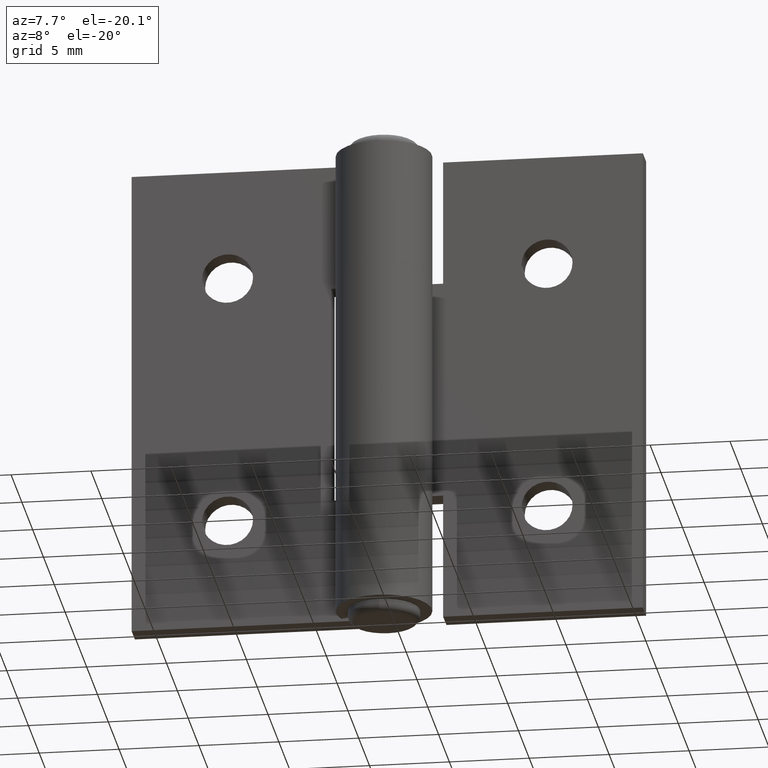
[diagram: clean part render]
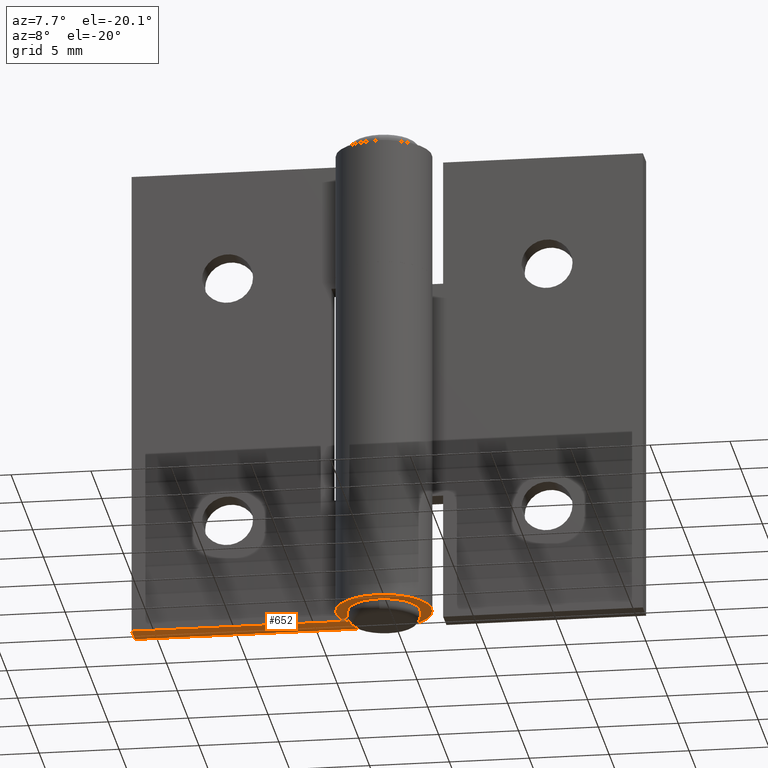
[diagram: same view with one face highlighted and labeled with its STEP entity id]
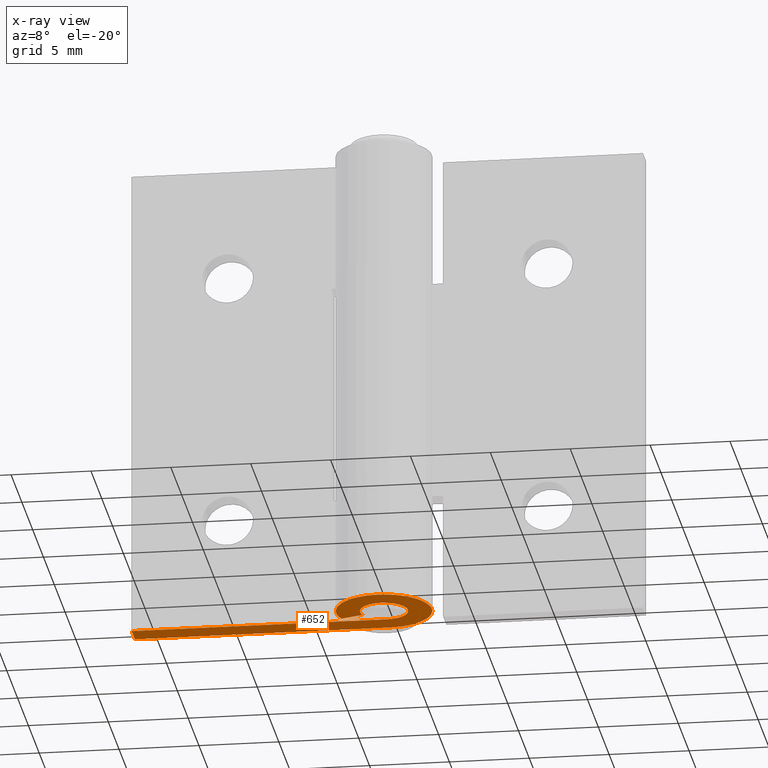
[diagram: x-ray of the same camera — body ghosted, the highlighted face saturated]
A machine part, auxiliary view. The second image highlights one B-rep face of the part: STEP entity #652.
The next image is the same camera in x-ray: the body ghosted, the highlighted face saturated — about 0% of this face is hidden behind the body in this view.
In plain terms, the highlighted planar face has unit normal (0, 0, -1).
Its self-contained STEP definition (entity closure, byte-faithful):
#70=LINE('',#1059,#124);
#79=LINE('',#1081,#133);
#81=LINE('',#1084,#135);
#82=LINE('',#1089,#136);
#124=VECTOR('',#855,16.);
#133=VECTOR('',#878,16.);
#135=VECTOR('',#882,1.5);
#136=VECTOR('',#887,1.5);
#157=PLANE('',#714);
#208=FACE_OUTER_BOUND('',#259,.T.);
#259=EDGE_LOOP('',(#579,#580,#581,#582,#583,#584));
#297=CIRCLE('',#715,3.);
#298=CIRCLE('',#716,1.5);
#349=VERTEX_POINT('',#1056);
#350=VERTEX_POINT('',#1058);
#355=VERTEX_POINT('',#1078);
#356=VERTEX_POINT('',#1080);
#357=VERTEX_POINT('',#1086);
#358=VERTEX_POINT('',#1088);
#422=EDGE_CURVE('',#350,#349,#70,.T.);
#433=EDGE_CURVE('',#356,#355,#79,.T.);
#435=EDGE_CURVE('',#349,#356,#81,.T.);
#436=EDGE_CURVE('',#355,#357,#297,.T.);
#437=EDGE_CURVE('',#357,#358,#82,.T.);
#438=EDGE_CURVE('',#358,#350,#298,.T.);
#579=ORIENTED_EDGE('',*,*,#422,.T.);
#580=ORIENTED_EDGE('',*,*,#435,.T.);
#581=ORIENTED_EDGE('',*,*,#433,.T.);
#582=ORIENTED_EDGE('',*,*,#436,.T.);
#583=ORIENTED_EDGE('',*,*,#437,.T.);
#584=ORIENTED_EDGE('',*,*,#438,.T.);
#652=ADVANCED_FACE('',(#208),#157,.T.);
#714=AXIS2_PLACEMENT_3D('',#1085,#883,#884);
#715=AXIS2_PLACEMENT_3D('',#1087,#885,#886);
#716=AXIS2_PLACEMENT_3D('',#1090,#888,#889);
#855=DIRECTION('',(-1.,-1.38777878078145E-16,0.));
#878=DIRECTION('',(1.,0.,0.));
#882=DIRECTION('',(0.,-1.,0.));
#883=DIRECTION('center_axis',(0.,0.,1.));
#884=DIRECTION('ref_axis',(1.,0.,0.));
#885=DIRECTION('center_axis',(0.,0.,1.));
#886=DIRECTION('ref_axis',(-0.866025403784439,-0.499999999999999,0.));
#887=DIRECTION('',(0.939692620785908,0.342020143325669,0.));
#888=DIRECTION('center_axis',(0.,0.,-1.));
#889=DIRECTION('ref_axis',(-3.70074341541719E-16,1.,0.));
#1056=CARTESIAN_POINT('',(-16.,1.5,15.));
#1058=CARTESIAN_POINT('',(1.30281440163747E-32,1.5,15.));
#1059=CARTESIAN_POINT('',(0.,1.5,15.));
#1078=CARTESIAN_POINT('',(0.,0.,15.));
#1080=CARTESIAN_POINT('',(-16.,0.,15.));
#1081=CARTESIAN_POINT('',(-16.,0.,15.));
#1084=CARTESIAN_POINT('',(-16.,1.5,15.));
#1085=CARTESIAN_POINT('Origin',(-8.,0.750000000000001,15.));
#1086=CARTESIAN_POINT('',(-2.81907786235773,1.97393957002299,15.));
#1087=CARTESIAN_POINT('Origin',(-5.55111512312578E-16,3.,15.));
#1088=CARTESIAN_POINT('',(-1.40953893117886,2.4869697850115,15.));
#1089=CARTESIAN_POINT('',(-2.81907786235773,1.97393957002299,15.));
#1090=CARTESIAN_POINT('Origin',(-5.55111512312578E-16,3.,15.));